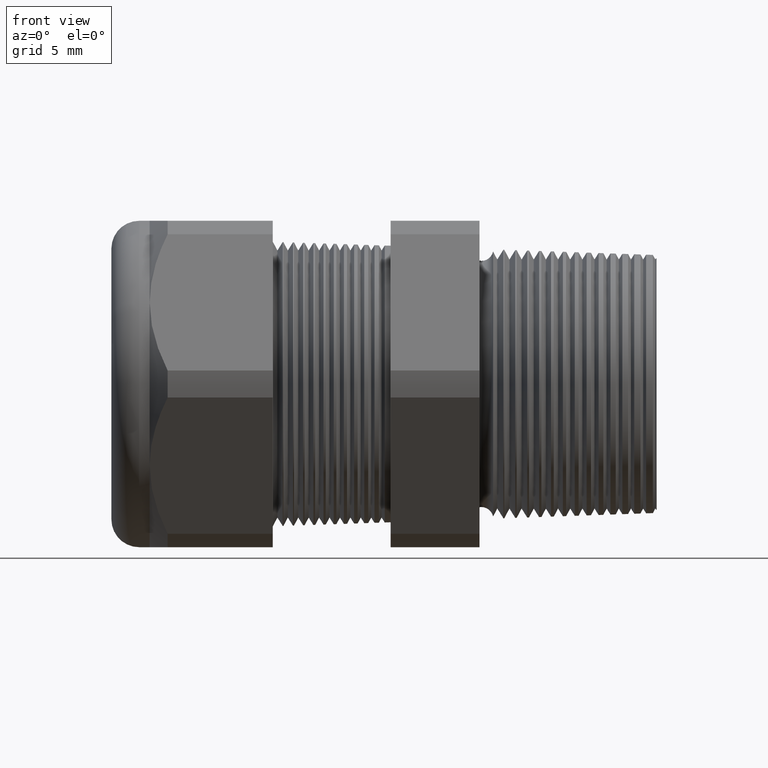
[diagram: clean part render]
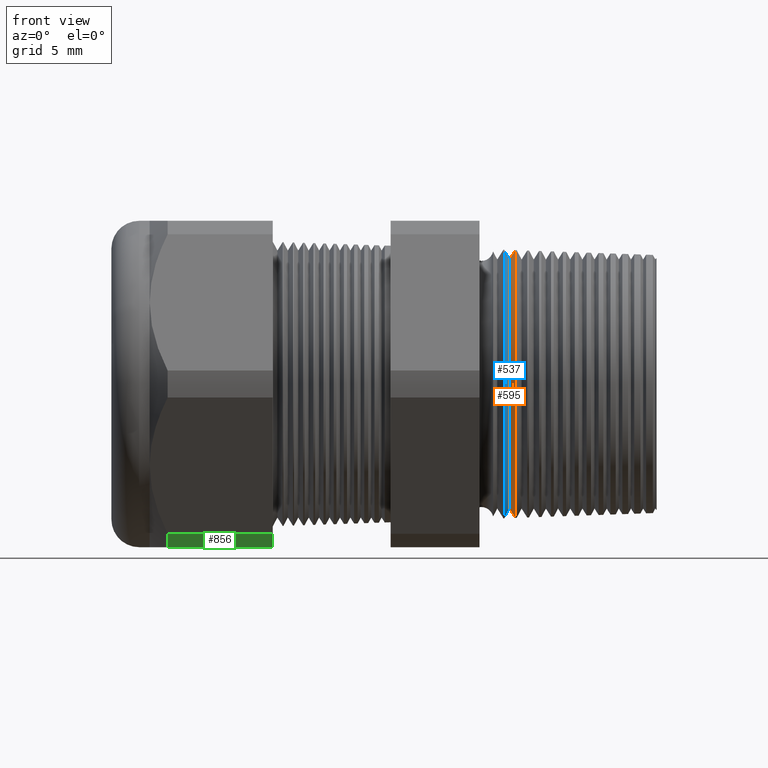
[diagram: same view with three faces highlighted in distinct colors, each labeled with its STEP entity id]
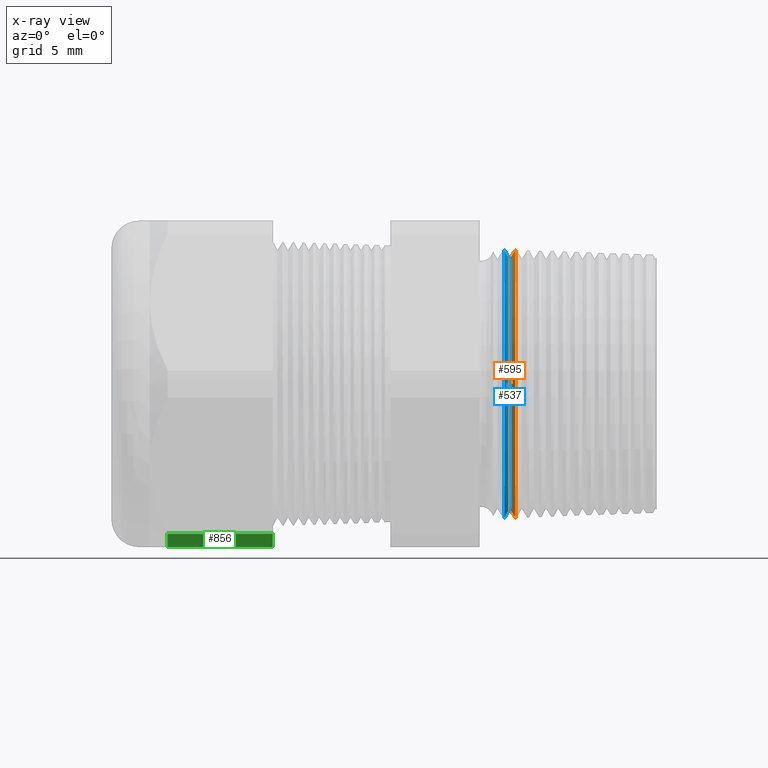
[diagram: x-ray of the same camera — body ghosted, the three highlighted faces saturated]
A machine part, front view with three faces highlighted in distinct colors.
The next image is the same camera in x-ray (body ghosted, the three faces saturated) — at least one of them is partly hidden behind the body in this view.
Their STEP definitions:

[orange] entity #595 — the highlighted conical surface has half-angle 58 deg.
#257 = EDGE_CURVE ( 'NONE', #1671, #1669, #2266, .T. ) ;
#541 = EDGE_CURVE ( 'NONE', #1672, #1661, #2795, .T. ) ;
#595 = ADVANCED_FACE ( 'NONE', ( #2848 ), #2847, .T. ) ;
#596 = EDGE_LOOP ( 'NONE', ( #597, #598, #599, #600 ) ) ;
#597 = ORIENTED_EDGE ( 'NONE', *, *, #1659, .F. ) ;
#598 = ORIENTED_EDGE ( 'NONE', *, *, #541, .T. ) ;
#599 = ORIENTED_EDGE ( 'NONE', *, *, #1673, .T. ) ;
#600 = ORIENTED_EDGE ( 'NONE', *, *, #257, .T. ) ;
#1659 = EDGE_CURVE ( 'NONE', #1672, #1669, #4718, .T. ) ;
#1661 = VERTEX_POINT ( 'NONE', #4709 ) ;
#1669 = VERTEX_POINT ( 'NONE', #4698 ) ;
#1671 = VERTEX_POINT ( 'NONE', #4697 ) ;
#1672 = VERTEX_POINT ( 'NONE', #4696 ) ;
#1673 = EDGE_CURVE ( 'NONE', #1661, #1671, #4695, .T. ) ;
#2262 = DIRECTION ( 'NONE',  ( 0.0000000000000000000, 0.0000000000000000000, -1.000000000000000000 ) ) ;
#2263 = DIRECTION ( 'NONE',  ( -1.000000000000000000, 0.0000000000000000000, 0.0000000000000000000 ) ) ;
#2264 = CARTESIAN_POINT ( 'NONE',  ( -0.2068749316218845600, 0.0000000000000000000, 0.0000000000000000000 ) ) ;
#2265 = AXIS2_PLACEMENT_3D ( 'NONE', #2264, #2263, #2262 ) ;
#2266 = CIRCLE ( 'NONE', #2265, 0.3856058122428721600 ) ;
#2792 = DIRECTION ( 'NONE',  ( 0.0000000000000000000, 0.0000000000000000000, -1.000000000000000000 ) ) ;
#2793 = DIRECTION ( 'NONE',  ( 1.000000000000000000, 0.0000000000000000000, 0.0000000000000000000 ) ) ;
#2794 = AXIS2_PLACEMENT_3D ( 'NONE', #2799, #2793, #2792 ) ;
#2795 = CIRCLE ( 'NONE', #2794, 0.3586208171594783600 ) ;
#2799 = CARTESIAN_POINT ( 'NONE',  ( -0.2237370280109210500, 0.0000000000000000000, 0.0000000000000000000 ) ) ;
#2843 = DIRECTION ( 'NONE',  ( 0.0000000000000000000, 0.0000000000000000000, -1.000000000000000000 ) ) ;
#2844 = DIRECTION ( 'NONE',  ( 1.000000000000000000, 0.0000000000000000000, 0.0000000000000000000 ) ) ;
#2845 = AXIS2_PLACEMENT_3D ( 'NONE', #2852, #2844, #2843 ) ;
#2847 = CONICAL_SURFACE ( 'NONE', #2845, 0.3586208171594783600, 1.012290966156729900 ) ;
#2848 = FACE_OUTER_BOUND ( 'NONE', #596, .T. ) ;
#2852 = CARTESIAN_POINT ( 'NONE',  ( -0.2237370280109210500, 0.0000000000000000000, 0.0000000000000000000 ) ) ;
#4692 = DIRECTION ( 'NONE',  ( 0.5299192642331890200, 0.0000000000000000000, -0.8480480961564357300 ) ) ;
#4693 = VECTOR ( 'NONE', #4692, 39.37007874015748900 ) ;
#4694 = CARTESIAN_POINT ( 'NONE',  ( -0.2237370280109210500, 0.0000000000000000000, -0.3586208171594783600 ) ) ;
#4695 = LINE ( 'NONE', #4694, #4693 ) ;
#4696 = CARTESIAN_POINT ( 'NONE',  ( -0.2237370280109210500, 0.0000000000000000000, 0.3586208171594783600 ) ) ;
#4697 = CARTESIAN_POINT ( 'NONE',  ( -0.2068749316218845600, 4.722309236958486600E-017, -0.3856058122428721600 ) ) ;
#4698 = CARTESIAN_POINT ( 'NONE',  ( -0.2068749316218845600, 0.0000000000000000000, 0.3856058122428721600 ) ) ;
#4709 = CARTESIAN_POINT ( 'NONE',  ( -0.2237370280109210500, 4.563873687570370700E-017, -0.3586208171594783600 ) ) ;
#4715 = DIRECTION ( 'NONE',  ( 0.5299192642331890200, 1.038559386480985800E-016, 0.8480480961564357300 ) ) ;
#4716 = VECTOR ( 'NONE', #4715, 39.37007874015748900 ) ;
#4717 = CARTESIAN_POINT ( 'NONE',  ( -0.2237370280109210500, 4.391838358419634200E-017, 0.3586208171594783600 ) ) ;
#4718 = LINE ( 'NONE', #4717, #4716 ) ;

[blue] entity #537 — the highlighted conical surface has half-angle 62 deg.
#263 = EDGE_CURVE ( 'NONE', #1716, #1666, #2254, .T. ) ;
#537 = ADVANCED_FACE ( 'NONE', ( #2801 ), #2800, .T. ) ;
#538 = EDGE_LOOP ( 'NONE', ( #539, #540, #593, #594 ) ) ;
#539 = ORIENTED_EDGE ( 'NONE', *, *, #1665, .F. ) ;
#540 = ORIENTED_EDGE ( 'NONE', *, *, #541, .F. ) ;
#541 = EDGE_CURVE ( 'NONE', #1672, #1661, #2795, .T. ) ;
#593 = ORIENTED_EDGE ( 'NONE', *, *, #1726, .T. ) ;
#594 = ORIENTED_EDGE ( 'NONE', *, *, #263, .T. ) ;
#1661 = VERTEX_POINT ( 'NONE', #4709 ) ;
#1665 = EDGE_CURVE ( 'NONE', #1661, #1666, #4703, .T. ) ;
#1666 = VERTEX_POINT ( 'NONE', #4699 ) ;
#1672 = VERTEX_POINT ( 'NONE', #4696 ) ;
#1716 = VERTEX_POINT ( 'NONE', #4808 ) ;
#1726 = EDGE_CURVE ( 'NONE', #1672, #1716, #4790, .T. ) ;
#2251 = DIRECTION ( 'NONE',  ( 0.0000000000000000000, 0.0000000000000000000, 1.000000000000000000 ) ) ;
#2252 = DIRECTION ( 'NONE',  ( 1.000000000000000000, 0.0000000000000000000, 0.0000000000000000000 ) ) ;
#2253 = AXIS2_PLACEMENT_3D ( 'NONE', #2259, #2252, #2251 ) ;
#2254 = CIRCLE ( 'NONE', #2253, 0.3867163185351426000 ) ;
#2259 = CARTESIAN_POINT ( 'NONE',  ( -0.2386756710796202600, 0.0000000000000000000, 0.0000000000000000000 ) ) ;
#2792 = DIRECTION ( 'NONE',  ( 0.0000000000000000000, 0.0000000000000000000, -1.000000000000000000 ) ) ;
#2793 = DIRECTION ( 'NONE',  ( 1.000000000000000000, 0.0000000000000000000, 0.0000000000000000000 ) ) ;
#2794 = AXIS2_PLACEMENT_3D ( 'NONE', #2799, #2793, #2792 ) ;
#2795 = CIRCLE ( 'NONE', #2794, 0.3586208171594783600 ) ;
#2796 = DIRECTION ( 'NONE',  ( 0.0000000000000000000, 0.0000000000000000000, 1.000000000000000000 ) ) ;
#2797 = DIRECTION ( 'NONE',  ( -1.000000000000000000, 0.0000000000000000000, 0.0000000000000000000 ) ) ;
#2798 = AXIS2_PLACEMENT_3D ( 'NONE', #2805, #2797, #2796 ) ;
#2799 = CARTESIAN_POINT ( 'NONE',  ( -0.2237370280109210500, 0.0000000000000000000, 0.0000000000000000000 ) ) ;
#2800 = CONICAL_SURFACE ( 'NONE', #2798, 0.3892070189845242000, 1.082104136236471400 ) ;
#2801 = FACE_OUTER_BOUND ( 'NONE', #538, .T. ) ;
#2805 = CARTESIAN_POINT ( 'NONE',  ( -0.2399999999999999600, 0.0000000000000000000, 0.0000000000000000000 ) ) ;
#4696 = CARTESIAN_POINT ( 'NONE',  ( -0.2237370280109210500, 0.0000000000000000000, 0.3586208171594783600 ) ) ;
#4699 = CARTESIAN_POINT ( 'NONE',  ( -0.2386756710796202600, 4.736433288408214800E-017, -0.3867163185351426000 ) ) ;
#4700 = DIRECTION ( 'NONE',  ( -0.4694715627859021900, 1.081298943409537900E-016, -0.8829475928589208800 ) ) ;
#4701 = VECTOR ( 'NONE', #4700, 39.37007874015748100 ) ;
#4702 = CARTESIAN_POINT ( 'NONE',  ( -0.2399999999999999600, 4.766411300050807300E-017, -0.3892070189845242000 ) ) ;
#4703 = LINE ( 'NONE', #4702, #4701 ) ;
#4709 = CARTESIAN_POINT ( 'NONE',  ( -0.2237370280109210500, 4.563873687570370700E-017, -0.3586208171594783600 ) ) ;
#4787 = DIRECTION ( 'NONE',  ( -0.4694715627859021900, 0.0000000000000000000, 0.8829475928589208800 ) ) ;
#4788 = VECTOR ( 'NONE', #4787, 39.37007874015748100 ) ;
#4789 = CARTESIAN_POINT ( 'NONE',  ( -0.2399999999999999600, 0.0000000000000000000, 0.3892070189845242000 ) ) ;
#4790 = LINE ( 'NONE', #4789, #4788 ) ;
#4808 = CARTESIAN_POINT ( 'NONE',  ( -0.2386756710796202600, 0.0000000000000000000, 0.3867163185351426000 ) ) ;

[green] entity #856 — the highlighted cylindrical surface (partial cylindrical patch) has radius 13.2512 mm, axis along (-1, 0, 0).
#849 = VERTEX_POINT ( 'NONE', #3250 ) ;
#851 = EDGE_CURVE ( 'NONE', #852, #849, #3305, .T. ) ;
#852 = VERTEX_POINT ( 'NONE', #3301 ) ;
#856 = ADVANCED_FACE ( 'NONE', ( #3296 ), #3295, .T. ) ;
#857 = EDGE_LOOP ( 'NONE', ( #858, #859, #919, #922 ) ) ;
#858 = ORIENTED_EDGE ( 'NONE', *, *, #851, .T. ) ;
#859 = ORIENTED_EDGE ( 'NONE', *, *, #860, .T. ) ;
#860 = EDGE_CURVE ( 'NONE', #849, #862, #3289, .T. ) ;
#862 = VERTEX_POINT ( 'NONE', #3285 ) ;
#919 = ORIENTED_EDGE ( 'NONE', *, *, #920, .F. ) ;
#920 = EDGE_CURVE ( 'NONE', #921, #862, #3412, .T. ) ;
#921 = VERTEX_POINT ( 'NONE', #3408 ) ;
#922 = ORIENTED_EDGE ( 'NONE', *, *, #923, .F. ) ;
#923 = EDGE_CURVE ( 'NONE', #852, #921, #3407, .T. ) ;
#3250 = CARTESIAN_POINT ( 'NONE',  ( -1.208063779527559300, -0.2938165587564942600, -0.4310947921287053300 ) ) ;
#3285 = CARTESIAN_POINT ( 'NONE',  ( -1.208063779527559300, -0.2264307620443830900, -0.4700000000000000300 ) ) ;
#3286 = DIRECTION ( 'NONE',  ( 0.0000000000000000000, 0.0000000000000000000, -1.000000000000000000 ) ) ;
#3287 = DIRECTION ( 'NONE',  ( 1.000000000000000000, 0.0000000000000000000, 0.0000000000000000000 ) ) ;
#3288 = AXIS2_PLACEMENT_3D ( 'NONE', #3294, #3287, #3286 ) ;
#3289 = CIRCLE ( 'NONE', #3288, 0.5217000000000000500 ) ;
#3290 = DIRECTION ( 'NONE',  ( 0.0000000000000000000, 0.0000000000000000000, 1.000000000000000000 ) ) ;
#3291 = DIRECTION ( 'NONE',  ( -1.000000000000000000, 0.0000000000000000000, 0.0000000000000000000 ) ) ;
#3292 = CARTESIAN_POINT ( 'NONE',  ( 0.2000000000000000400, 0.0000000000000000000, 0.0000000000000000000 ) ) ;
#3293 = AXIS2_PLACEMENT_3D ( 'NONE', #3292, #3291, #3290 ) ;
#3294 = CARTESIAN_POINT ( 'NONE',  ( -1.208063779527559300, 0.0000000000000000000, 0.0000000000000000000 ) ) ;
#3295 = CYLINDRICAL_SURFACE ( 'NONE', #3293, 0.5217000000000000500 ) ;
#3296 = FACE_OUTER_BOUND ( 'NONE', #857, .T. ) ;
#3301 = CARTESIAN_POINT ( 'NONE',  ( -0.9054330708661418900, -0.2938165587564942600, -0.4310947921287053300 ) ) ;
#3302 = DIRECTION ( 'NONE',  ( -1.000000000000000000, 0.0000000000000000000, 0.0000000000000000000 ) ) ;
#3303 = VECTOR ( 'NONE', #3302, 39.37007874015748100 ) ;
#3304 = CARTESIAN_POINT ( 'NONE',  ( 0.2000000000000000400, -0.2938165587564942600, -0.4310947921287053300 ) ) ;
#3305 = LINE ( 'NONE', #3304, #3303 ) ;
#3403 = DIRECTION ( 'NONE',  ( 0.0000000000000000000, 0.0000000000000000000, -1.000000000000000000 ) ) ;
#3404 = DIRECTION ( 'NONE',  ( 1.000000000000000000, 0.0000000000000000000, 0.0000000000000000000 ) ) ;
#3405 = CARTESIAN_POINT ( 'NONE',  ( -0.9054330708661418900, 0.0000000000000000000, 0.0000000000000000000 ) ) ;
#3406 = AXIS2_PLACEMENT_3D ( 'NONE', #3405, #3404, #3403 ) ;
#3407 = CIRCLE ( 'NONE', #3406, 0.5217000000000000500 ) ;
#3408 = CARTESIAN_POINT ( 'NONE',  ( -0.9054330708661418900, -0.2264307620443830900, -0.4700000000000000300 ) ) ;
#3409 = DIRECTION ( 'NONE',  ( -1.000000000000000000, 0.0000000000000000000, 0.0000000000000000000 ) ) ;
#3410 = VECTOR ( 'NONE', #3409, 39.37007874015748100 ) ;
#3411 = CARTESIAN_POINT ( 'NONE',  ( 0.2000000000000000400, -0.2264307620443830900, -0.4700000000000000300 ) ) ;
#3412 = LINE ( 'NONE', #3411, #3410 ) ;